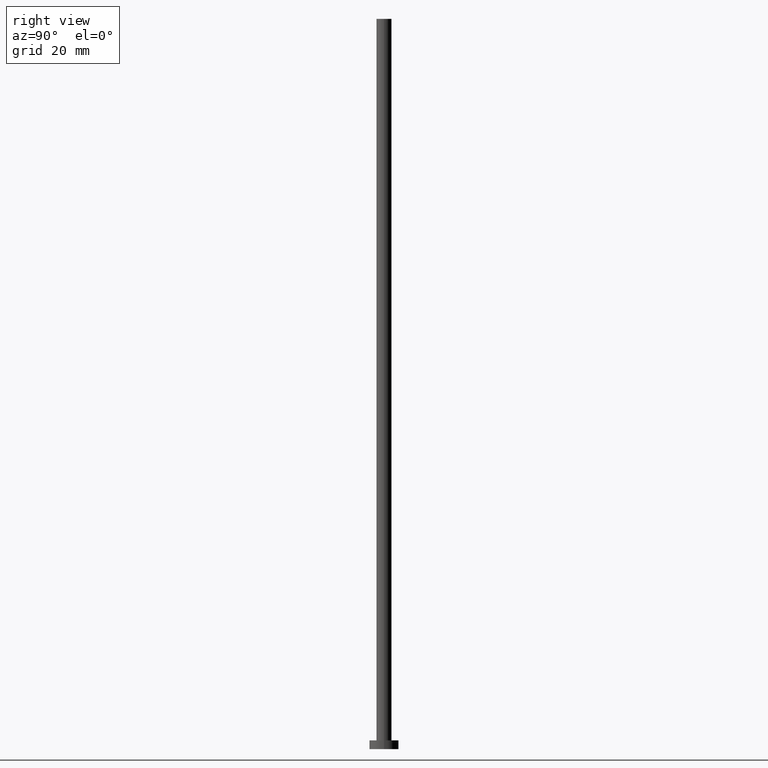
[diagram: clean part render]
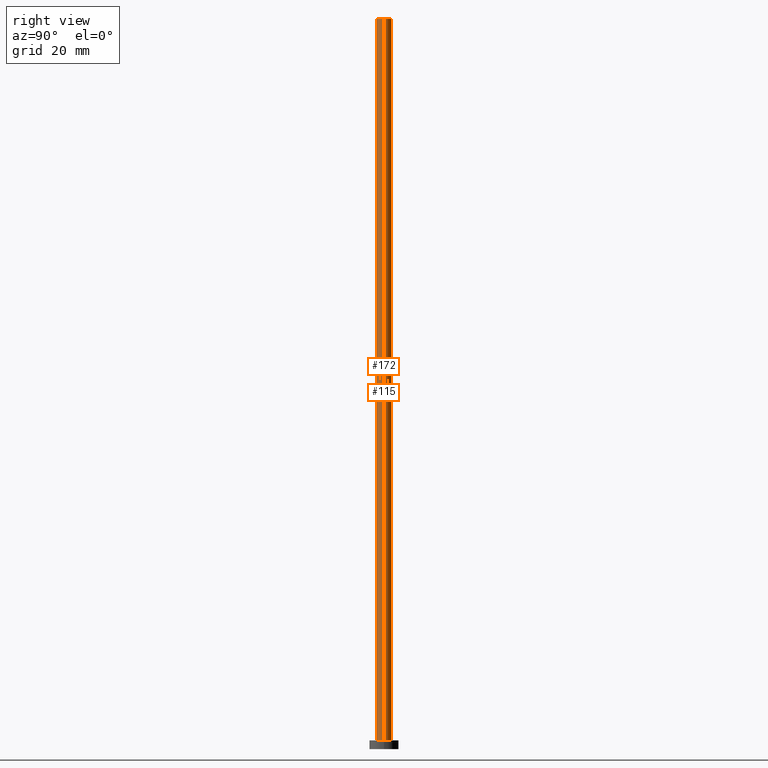
[diagram: same view with one multi-face feature highlighted, each face labeled with its STEP entity id]
A machine part, right view. The highlighted faces form ONE feature: a constant-radius fillet chain: 2 tangent blend faces with common blend radius 2.6 mm. The faces share edges in the B-rep.
Their STEP definitions:
[1] entity #172 (Cylinder):
#4 = DIRECTION ( 'NONE',  ( 0.000000000000000000, 0.000000000000000000, 1.000000000000000000 ) ) ;
#10 = CIRCLE ( 'NONE', #207, 2.600000000000000089 ) ;
#11 = VERTEX_POINT ( 'NONE', #249 ) ;
#19 = ORIENTED_EDGE ( 'NONE', *, *, #122, .T. ) ;
#21 = DIRECTION ( 'NONE',  ( -0.000000000000000000, -0.000000000000000000, -1.000000000000000000 ) ) ;
#26 = DIRECTION ( 'NONE',  ( -0.000000000000000000, -0.000000000000000000, -1.000000000000000000 ) ) ;
#34 = ORIENTED_EDGE ( 'NONE', *, *, #86, .F. ) ;
#35 = LINE ( 'NONE', #104, #92 ) ;
#36 = CARTESIAN_POINT ( 'NONE',  ( 0.000000000000000000, 0.000000000000000000, 250.0000000000000000 ) ) ;
#63 = CARTESIAN_POINT ( 'NONE',  ( 0.000000000000000000, 0.000000000000000000, 250.0000000000000000 ) ) ;
#75 = AXIS2_PLACEMENT_3D ( 'NONE', #106, #4, #83 ) ;
#78 = EDGE_CURVE ( 'NONE', #11, #252, #35, .T. ) ;
#80 = CYLINDRICAL_SURFACE ( 'NONE', #194, 2.600000000000000089 ) ;
#83 = DIRECTION ( 'NONE',  ( 1.000000000000000000, 0.000000000000000000, 0.000000000000000000 ) ) ;
#86 = EDGE_CURVE ( 'NONE', #11, #103, #10, .T. ) ;
#87 = CARTESIAN_POINT ( 'NONE',  ( 2.600000000000000089, 3.184081677783118191E-16, 3.000000000000000000 ) ) ;
#92 = VECTOR ( 'NONE', #21, 1000.000000000000000 ) ;
#98 = ORIENTED_EDGE ( 'NONE', *, *, #128, .F. ) ;
#103 = VERTEX_POINT ( 'NONE', #175 ) ;
#104 = CARTESIAN_POINT ( 'NONE',  ( -2.600000000000000089, 0.000000000000000000, 250.0000000000000000 ) ) ;
#106 = CARTESIAN_POINT ( 'NONE',  ( 0.000000000000000000, 0.000000000000000000, 3.000000000000000000 ) ) ;
#119 = DIRECTION ( 'NONE',  ( 0.000000000000000000, 0.000000000000000000, 1.000000000000000000 ) ) ;
#122 = EDGE_CURVE ( 'NONE', #252, #130, #186, .T. ) ;
#128 = EDGE_CURVE ( 'NONE', #103, #130, #158, .T. ) ;
#130 = VERTEX_POINT ( 'NONE', #87 ) ;
#131 = EDGE_LOOP ( 'NONE', ( #98, #34, #195, #19 ) ) ;
#142 = CARTESIAN_POINT ( 'NONE',  ( 2.600000000000000089, 3.184081677783118191E-16, 250.0000000000000000 ) ) ;
#157 = VECTOR ( 'NONE', #202, 1000.000000000000000 ) ;
#158 = LINE ( 'NONE', #142, #157 ) ;
#159 = CARTESIAN_POINT ( 'NONE',  ( -2.600000000000000089, 0.000000000000000000, 3.000000000000000000 ) ) ;
#172 = ADVANCED_FACE ( 'NONE', ( #254 ), #80, .T. ) ;
#175 = CARTESIAN_POINT ( 'NONE',  ( 2.600000000000000089, 3.184081677783118191E-16, 250.0000000000000000 ) ) ;
#186 = CIRCLE ( 'NONE', #75, 2.600000000000000089 ) ;
#194 = AXIS2_PLACEMENT_3D ( 'NONE', #63, #26, #203 ) ;
#195 = ORIENTED_EDGE ( 'NONE', *, *, #78, .T. ) ;
#197 = DIRECTION ( 'NONE',  ( 1.000000000000000000, 0.000000000000000000, 0.000000000000000000 ) ) ;
#202 = DIRECTION ( 'NONE',  ( -0.000000000000000000, -0.000000000000000000, -1.000000000000000000 ) ) ;
#203 = DIRECTION ( 'NONE',  ( -1.000000000000000000, 0.000000000000000000, 0.000000000000000000 ) ) ;
#207 = AXIS2_PLACEMENT_3D ( 'NONE', #36, #119, #197 ) ;
#249 = CARTESIAN_POINT ( 'NONE',  ( -2.600000000000000089, 0.000000000000000000, 250.0000000000000000 ) ) ;
#252 = VERTEX_POINT ( 'NONE', #159 ) ;
#254 = FACE_OUTER_BOUND ( 'NONE', #131, .T. ) ;
[2] entity #115 (Cylinder):
#11 = VERTEX_POINT ( 'NONE', #249 ) ;
#13 = ORIENTED_EDGE ( 'NONE', *, *, #125, .T. ) ;
#16 = CIRCLE ( 'NONE', #251, 2.600000000000000089 ) ;
#18 = CIRCLE ( 'NONE', #242, 2.600000000000000089 ) ;
#21 = DIRECTION ( 'NONE',  ( -0.000000000000000000, -0.000000000000000000, -1.000000000000000000 ) ) ;
#23 = DIRECTION ( 'NONE',  ( -0.000000000000000000, -0.000000000000000000, -1.000000000000000000 ) ) ;
#35 = LINE ( 'NONE', #104, #92 ) ;
#38 = CYLINDRICAL_SURFACE ( 'NONE', #152, 2.600000000000000089 ) ;
#40 = CARTESIAN_POINT ( 'NONE',  ( 0.000000000000000000, 0.000000000000000000, 250.0000000000000000 ) ) ;
#71 = ORIENTED_EDGE ( 'NONE', *, *, #201, .F. ) ;
#77 = FACE_OUTER_BOUND ( 'NONE', #168, .T. ) ;
#78 = EDGE_CURVE ( 'NONE', #11, #252, #35, .T. ) ;
#87 = CARTESIAN_POINT ( 'NONE',  ( 2.600000000000000089, 3.184081677783118191E-16, 3.000000000000000000 ) ) ;
#92 = VECTOR ( 'NONE', #21, 1000.000000000000000 ) ;
#103 = VERTEX_POINT ( 'NONE', #175 ) ;
#104 = CARTESIAN_POINT ( 'NONE',  ( -2.600000000000000089, 0.000000000000000000, 250.0000000000000000 ) ) ;
#105 = DIRECTION ( 'NONE',  ( -1.000000000000000000, 0.000000000000000000, 0.000000000000000000 ) ) ;
#107 = DIRECTION ( 'NONE',  ( 1.000000000000000000, 0.000000000000000000, 0.000000000000000000 ) ) ;
#115 = ADVANCED_FACE ( 'NONE', ( #77 ), #38, .T. ) ;
#120 = CARTESIAN_POINT ( 'NONE',  ( 0.000000000000000000, 0.000000000000000000, 250.0000000000000000 ) ) ;
#123 = DIRECTION ( 'NONE',  ( 0.000000000000000000, 0.000000000000000000, 1.000000000000000000 ) ) ;
#125 = EDGE_CURVE ( 'NONE', #130, #252, #16, .T. ) ;
#128 = EDGE_CURVE ( 'NONE', #103, #130, #158, .T. ) ;
#130 = VERTEX_POINT ( 'NONE', #87 ) ;
#142 = CARTESIAN_POINT ( 'NONE',  ( 2.600000000000000089, 3.184081677783118191E-16, 250.0000000000000000 ) ) ;
#152 = AXIS2_PLACEMENT_3D ( 'NONE', #120, #23, #105 ) ;
#157 = VECTOR ( 'NONE', #202, 1000.000000000000000 ) ;
#158 = LINE ( 'NONE', #142, #157 ) ;
#159 = CARTESIAN_POINT ( 'NONE',  ( -2.600000000000000089, 0.000000000000000000, 3.000000000000000000 ) ) ;
#166 = ORIENTED_EDGE ( 'NONE', *, *, #128, .T. ) ;
#168 = EDGE_LOOP ( 'NONE', ( #71, #166, #13, #171 ) ) ;
#171 = ORIENTED_EDGE ( 'NONE', *, *, #78, .F. ) ;
#175 = CARTESIAN_POINT ( 'NONE',  ( 2.600000000000000089, 3.184081677783118191E-16, 250.0000000000000000 ) ) ;
#200 = CARTESIAN_POINT ( 'NONE',  ( 0.000000000000000000, 0.000000000000000000, 3.000000000000000000 ) ) ;
#201 = EDGE_CURVE ( 'NONE', #103, #11, #18, .T. ) ;
#202 = DIRECTION ( 'NONE',  ( -0.000000000000000000, -0.000000000000000000, -1.000000000000000000 ) ) ;
#225 = DIRECTION ( 'NONE',  ( 0.000000000000000000, 0.000000000000000000, 1.000000000000000000 ) ) ;
#238 = DIRECTION ( 'NONE',  ( 1.000000000000000000, 0.000000000000000000, 0.000000000000000000 ) ) ;
#242 = AXIS2_PLACEMENT_3D ( 'NONE', #40, #123, #107 ) ;
#249 = CARTESIAN_POINT ( 'NONE',  ( -2.600000000000000089, 0.000000000000000000, 250.0000000000000000 ) ) ;
#251 = AXIS2_PLACEMENT_3D ( 'NONE', #200, #225, #238 ) ;
#252 = VERTEX_POINT ( 'NONE', #159 ) ;